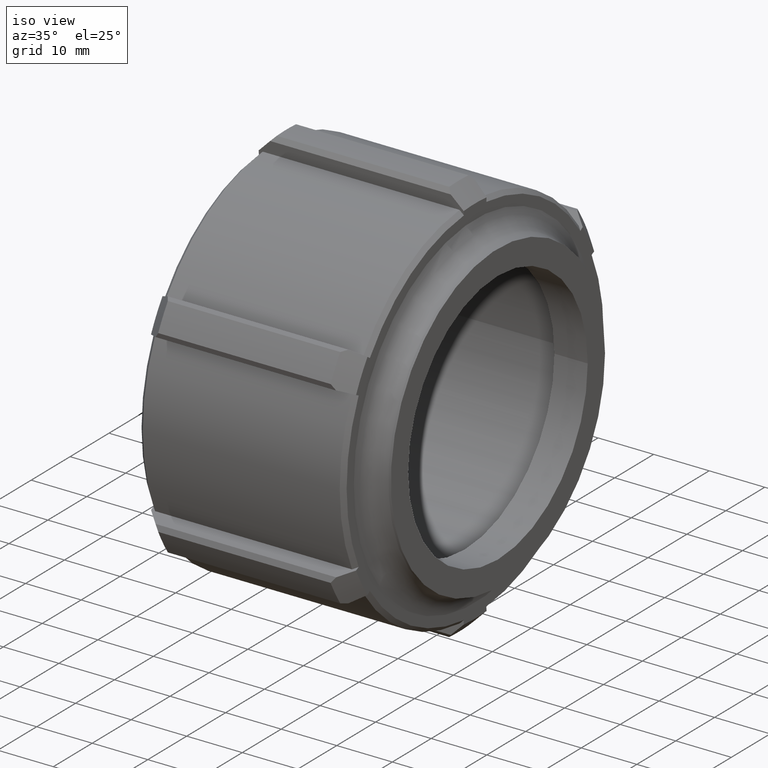
[diagram: clean part render]
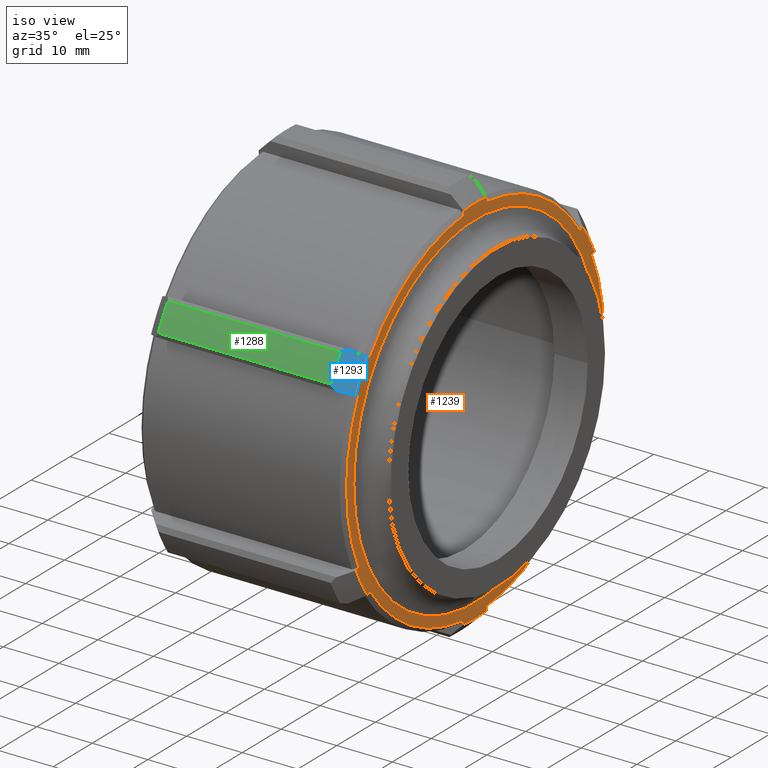
[diagram: same view with three faces highlighted in distinct colors, each labeled with its STEP entity id]
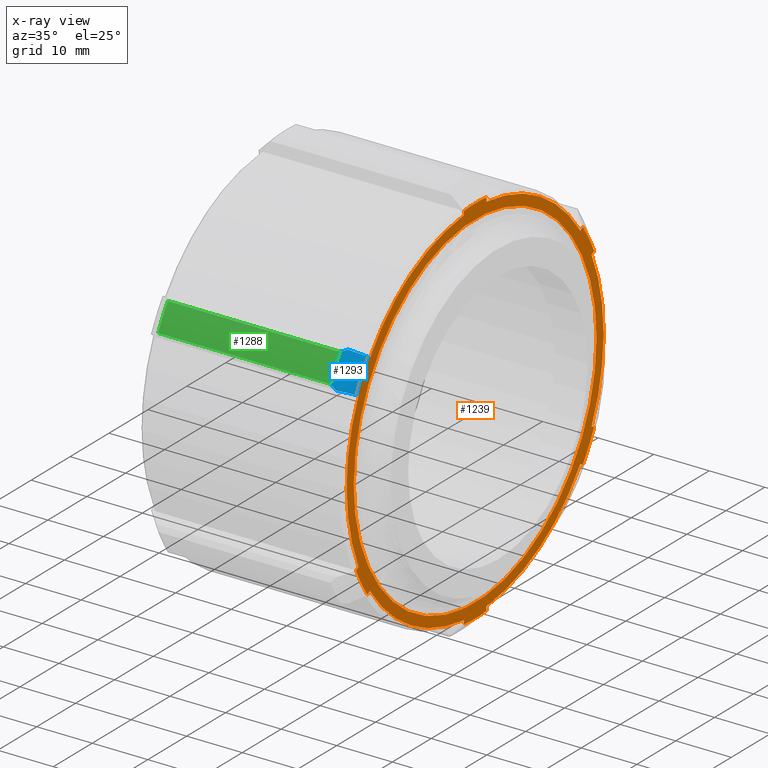
[diagram: x-ray of the same camera — body ghosted, the three highlighted faces saturated]
A machine part, iso view with three faces highlighted in distinct colors.
The next image is the same camera in x-ray (body ghosted, the three faces saturated) — at least one of them is partly hidden behind the body in this view.
Their STEP definitions:

[orange] entity #1239 — the highlighted planar face has unit normal (1, 0, 0).
#79=LINE('',#1810,#187);
#80=LINE('',#1814,#188);
#81=LINE('',#1818,#189);
#82=LINE('',#1822,#190);
#83=LINE('',#1826,#191);
#84=LINE('',#1830,#192);
#85=LINE('',#1834,#193);
#86=LINE('',#1838,#194);
#87=LINE('',#1842,#195);
#88=LINE('',#1846,#196);
#89=LINE('',#1850,#197);
#90=LINE('',#1854,#198);
#187=VECTOR('',#1447,0.734000000000001);
#188=VECTOR('',#1450,0.734000000000004);
#189=VECTOR('',#1453,0.734000000000004);
#190=VECTOR('',#1456,0.733999999999999);
#191=VECTOR('',#1459,0.733999999999995);
#192=VECTOR('',#1462,0.733999999999986);
#193=VECTOR('',#1465,0.733999999999999);
#194=VECTOR('',#1468,0.734000000000004);
#195=VECTOR('',#1471,0.733999999999999);
#196=VECTOR('',#1474,0.733999999999999);
#197=VECTOR('',#1477,0.734);
#198=VECTOR('',#1480,0.733999999999999);
#295=PLANE('',#1313);
#325=FACE_BOUND('',#407,.T.);
#335=FACE_OUTER_BOUND('',#406,.T.);
#406=EDGE_LOOP('',(#861,#862,#863,#864,#865,#866,#867,#868,#869,#870,#871,
#872,#873,#874,#875,#876,#877,#878,#879,#880,#881,#882,#883,#884));
#407=EDGE_LOOP('',(#885));
#484=CIRCLE('',#1311,31.195);
#486=CIRCLE('',#1314,33.03);
#487=CIRCLE('',#1315,33.764);
#488=CIRCLE('',#1316,33.03);
#489=CIRCLE('',#1317,33.764);
#490=CIRCLE('',#1318,33.03);
#491=CIRCLE('',#1319,33.764);
#492=CIRCLE('',#1320,33.03);
#493=CIRCLE('',#1321,33.764);
#494=CIRCLE('',#1322,33.03);
#495=CIRCLE('',#1323,33.764);
#496=CIRCLE('',#1324,33.03);
#497=CIRCLE('',#1325,33.764);
#541=VERTEX_POINT('',#1803);
#543=VERTEX_POINT('',#1808);
#544=VERTEX_POINT('',#1809);
#545=VERTEX_POINT('',#1811);
#546=VERTEX_POINT('',#1813);
#547=VERTEX_POINT('',#1815);
#548=VERTEX_POINT('',#1817);
#549=VERTEX_POINT('',#1819);
#550=VERTEX_POINT('',#1821);
#551=VERTEX_POINT('',#1823);
#552=VERTEX_POINT('',#1825);
#553=VERTEX_POINT('',#1827);
#554=VERTEX_POINT('',#1829);
#555=VERTEX_POINT('',#1831);
#556=VERTEX_POINT('',#1833);
#557=VERTEX_POINT('',#1835);
#558=VERTEX_POINT('',#1837);
#559=VERTEX_POINT('',#1839);
#560=VERTEX_POINT('',#1841);
#561=VERTEX_POINT('',#1843);
#562=VERTEX_POINT('',#1845);
#563=VERTEX_POINT('',#1847);
#564=VERTEX_POINT('',#1849);
#565=VERTEX_POINT('',#1851);
#566=VERTEX_POINT('',#1853);
#670=EDGE_CURVE('',#541,#541,#484,.T.);
#672=EDGE_CURVE('',#543,#544,#79,.T.);
#673=EDGE_CURVE('',#545,#543,#486,.T.);
#674=EDGE_CURVE('',#546,#545,#80,.T.);
#675=EDGE_CURVE('',#547,#546,#487,.T.);
#676=EDGE_CURVE('',#548,#547,#81,.T.);
#677=EDGE_CURVE('',#549,#548,#488,.T.);
#678=EDGE_CURVE('',#550,#549,#82,.T.);
#679=EDGE_CURVE('',#551,#550,#489,.T.);
#680=EDGE_CURVE('',#552,#551,#83,.T.);
#681=EDGE_CURVE('',#553,#552,#490,.T.);
#682=EDGE_CURVE('',#554,#553,#84,.T.);
#683=EDGE_CURVE('',#555,#554,#491,.T.);
#684=EDGE_CURVE('',#556,#555,#85,.T.);
#685=EDGE_CURVE('',#557,#556,#492,.T.);
#686=EDGE_CURVE('',#558,#557,#86,.T.);
#687=EDGE_CURVE('',#559,#558,#493,.T.);
#688=EDGE_CURVE('',#560,#559,#87,.T.);
#689=EDGE_CURVE('',#561,#560,#494,.T.);
#690=EDGE_CURVE('',#562,#561,#88,.T.);
#691=EDGE_CURVE('',#563,#562,#495,.T.);
#692=EDGE_CURVE('',#564,#563,#89,.T.);
#693=EDGE_CURVE('',#565,#564,#496,.T.);
#694=EDGE_CURVE('',#566,#565,#90,.T.);
#695=EDGE_CURVE('',#544,#566,#497,.T.);
#861=ORIENTED_EDGE('',*,*,#672,.F.);
#862=ORIENTED_EDGE('',*,*,#673,.F.);
#863=ORIENTED_EDGE('',*,*,#674,.F.);
#864=ORIENTED_EDGE('',*,*,#675,.F.);
#865=ORIENTED_EDGE('',*,*,#676,.F.);
#866=ORIENTED_EDGE('',*,*,#677,.F.);
#867=ORIENTED_EDGE('',*,*,#678,.F.);
#868=ORIENTED_EDGE('',*,*,#679,.F.);
#869=ORIENTED_EDGE('',*,*,#680,.F.);
#870=ORIENTED_EDGE('',*,*,#681,.F.);
#871=ORIENTED_EDGE('',*,*,#682,.F.);
#872=ORIENTED_EDGE('',*,*,#683,.F.);
#873=ORIENTED_EDGE('',*,*,#684,.F.);
#874=ORIENTED_EDGE('',*,*,#685,.F.);
#875=ORIENTED_EDGE('',*,*,#686,.F.);
#876=ORIENTED_EDGE('',*,*,#687,.F.);
#877=ORIENTED_EDGE('',*,*,#688,.F.);
#878=ORIENTED_EDGE('',*,*,#689,.F.);
#879=ORIENTED_EDGE('',*,*,#690,.F.);
#880=ORIENTED_EDGE('',*,*,#691,.F.);
#881=ORIENTED_EDGE('',*,*,#692,.F.);
#882=ORIENTED_EDGE('',*,*,#693,.F.);
#883=ORIENTED_EDGE('',*,*,#694,.F.);
#884=ORIENTED_EDGE('',*,*,#695,.F.);
#885=ORIENTED_EDGE('',*,*,#670,.F.);
#1239=ADVANCED_FACE('',(#335,#325),#295,.T.);
#1311=AXIS2_PLACEMENT_3D('',#1804,#1441,#1442);
#1313=AXIS2_PLACEMENT_3D('',#1807,#1445,#1446);
#1314=AXIS2_PLACEMENT_3D('',#1812,#1448,#1449);
#1315=AXIS2_PLACEMENT_3D('',#1816,#1451,#1452);
#1316=AXIS2_PLACEMENT_3D('',#1820,#1454,#1455);
#1317=AXIS2_PLACEMENT_3D('',#1824,#1457,#1458);
#1318=AXIS2_PLACEMENT_3D('',#1828,#1460,#1461);
#1319=AXIS2_PLACEMENT_3D('',#1832,#1463,#1464);
#1320=AXIS2_PLACEMENT_3D('',#1836,#1466,#1467);
#1321=AXIS2_PLACEMENT_3D('',#1840,#1469,#1470);
#1322=AXIS2_PLACEMENT_3D('',#1844,#1472,#1473);
#1323=AXIS2_PLACEMENT_3D('',#1848,#1475,#1476);
#1324=AXIS2_PLACEMENT_3D('',#1852,#1478,#1479);
#1325=AXIS2_PLACEMENT_3D('',#1855,#1481,#1482);
#1441=DIRECTION('center_axis',(1.,0.,0.));
#1442=DIRECTION('ref_axis',(0.,-1.,1.83697019872103E-16));
#1445=DIRECTION('center_axis',(1.,0.,0.));
#1446=DIRECTION('ref_axis',(0.,0.,-1.));
#1447=DIRECTION('',(0.,-0.0871557427476573,0.996194698091746));
#1448=DIRECTION('center_axis',(-1.,0.,0.));
#1449=DIRECTION('ref_axis',(0.,0.866025403784439,0.5));
#1450=DIRECTION('',(0.,0.819152044288991,-0.573576436351047));
#1451=DIRECTION('center_axis',(-1.,0.,0.));
#1452=DIRECTION('ref_axis',(0.,-1.,0.));
#1453=DIRECTION('',(0.,-0.90630778703665,0.4226182617407));
#1454=DIRECTION('center_axis',(-1.,0.,0.));
#1455=DIRECTION('ref_axis',(0.,1.31527428577794E-16,1.));
#1456=DIRECTION('',(0.,0.90630778703665,0.422618261740699));
#1457=DIRECTION('center_axis',(-1.,0.,0.));
#1458=DIRECTION('ref_axis',(0.,-1.,0.));
#1459=DIRECTION('',(0.,-0.819152044288992,-0.573576436351045));
#1460=DIRECTION('center_axis',(-1.,0.,0.));
#1461=DIRECTION('ref_axis',(0.,-0.866025403784438,0.5));
#1462=DIRECTION('',(0.,0.0871557427476593,0.996194698091745));
#1463=DIRECTION('center_axis',(-1.,0.,0.));
#1464=DIRECTION('ref_axis',(0.,-1.,0.));
#1465=DIRECTION('',(0.,0.0871557427476567,-0.996194698091746));
#1466=DIRECTION('center_axis',(-1.,0.,0.));
#1467=DIRECTION('ref_axis',(0.,-0.866025403784439,-0.499999999999999));
#1468=DIRECTION('',(0.,-0.819152044288991,0.573576436351047));
#1469=DIRECTION('center_axis',(-1.,0.,0.));
#1470=DIRECTION('ref_axis',(0.,-1.,0.));
#1471=DIRECTION('',(0.,0.90630778703665,-0.4226182617407));
#1472=DIRECTION('center_axis',(-1.,0.,0.));
#1473=DIRECTION('ref_axis',(0.,0.,-1.));
#1474=DIRECTION('',(0.,-0.90630778703665,-0.422618261740699));
#1475=DIRECTION('center_axis',(-1.,0.,0.));
#1476=DIRECTION('ref_axis',(0.,-1.,0.));
#1477=DIRECTION('',(0.,0.819152044288992,0.573576436351045));
#1478=DIRECTION('center_axis',(-1.,0.,0.));
#1479=DIRECTION('ref_axis',(0.,0.866025403784438,-0.5));
#1480=DIRECTION('',(0.,-0.0871557427476589,-0.996194698091745));
#1481=DIRECTION('center_axis',(-1.,0.,0.));
#1482=DIRECTION('ref_axis',(0.,-1.,0.));
#1803=CARTESIAN_POINT('',(36.9,31.195,-1.91014284497008E-15));
#1804=CARTESIAN_POINT('Origin',(36.9,0.,0.));
#1807=CARTESIAN_POINT('Origin',(36.9,27.525,0.));
#1808=CARTESIAN_POINT('',(36.9,-2.87875418295512,32.9043108779704));
#1809=CARTESIAN_POINT('',(36.9,-2.9427264981319,33.6355177863697));
#1810=CARTESIAN_POINT('',(36.9,-1.36682159948122,15.6228423706143));
#1811=CARTESIAN_POINT('',(36.9,-27.0565920228654,18.9452296926751));
#1812=CARTESIAN_POINT('Origin',(36.9,0.,0.));
#1813=CARTESIAN_POINT('',(36.9,-27.6578496233735,19.3662347969568));
#1814=CARTESIAN_POINT('',(36.9,-5.79666390144324,4.05886776025868));
#1815=CARTESIAN_POINT('',(36.9,-30.6005761215054,14.269282989413));
#1816=CARTESIAN_POINT('Origin',(36.9,0.,0.));
#1817=CARTESIAN_POINT('',(36.9,-29.9353462058205,13.9590811852953));
#1818=CARTESIAN_POINT('',(36.9,-3.99585582159723,1.86329817049402));
#1819=CARTESIAN_POINT('',(36.9,-29.9353462058206,-13.9590811852953));
#1820=CARTESIAN_POINT('Origin',(36.9,0.,0.));
#1821=CARTESIAN_POINT('',(36.9,-30.6005761215055,-14.269282989413));
#1822=CARTESIAN_POINT('',(36.9,-5.32631565296703,-2.48370177872936));
#1823=CARTESIAN_POINT('',(36.9,-27.6578496233735,-19.3662347969567));
#1824=CARTESIAN_POINT('Origin',(36.9,0.,0.));
#1825=CARTESIAN_POINT('',(36.9,-27.0565920228654,-18.945229692675));
#1826=CARTESIAN_POINT('',(36.9,-4.594148700427,-3.21685755169532));
#1827=CARTESIAN_POINT('',(36.9,-2.87875418295519,-32.9043108779704));
#1828=CARTESIAN_POINT('Origin',(36.9,0.,0.));
#1829=CARTESIAN_POINT('',(36.9,-2.94272649813197,-33.6355177863697));
#1830=CARTESIAN_POINT('',(36.9,-1.4947662298348,-17.085256187413));
#1831=CARTESIAN_POINT('',(36.9,2.94272649813188,-33.6355177863697));
#1832=CARTESIAN_POINT('Origin',(36.9,0.,0.));
#1833=CARTESIAN_POINT('',(36.9,2.8787541829551,-32.9043108779704));
#1834=CARTESIAN_POINT('',(36.9,1.57590489865068,-18.0126754157554));
#1835=CARTESIAN_POINT('',(36.9,27.0565920228654,-18.9452296926751));
#1836=CARTESIAN_POINT('Origin',(36.9,0.,0.));
#1837=CARTESIAN_POINT('',(36.9,27.6578496233735,-19.3662347969568));
#1838=CARTESIAN_POINT('',(36.9,24.2662161239627,-16.9913874538248));
#1839=CARTESIAN_POINT('',(36.9,30.6005761215054,-14.269282989413));
#1840=CARTESIAN_POINT('Origin',(36.9,0.,0.));
#1841=CARTESIAN_POINT('',(36.9,29.9353462058205,-13.9590811852953));
#1842=CARTESIAN_POINT('',(36.9,26.6047202999082,-12.405984818919));
#1843=CARTESIAN_POINT('',(36.9,29.9353462058206,13.9590811852953));
#1844=CARTESIAN_POINT('Origin',(36.9,0.,0.));
#1845=CARTESIAN_POINT('',(36.9,30.6005761215055,14.269282989413));
#1846=CARTESIAN_POINT('',(36.9,27.935180131278,13.0263884271543));
#1847=CARTESIAN_POINT('',(36.9,27.6578496233735,19.3662347969567));
#1848=CARTESIAN_POINT('Origin',(36.9,0.,0.));
#1849=CARTESIAN_POINT('',(36.9,27.0565920228654,18.945229692675));
#1850=CARTESIAN_POINT('',(36.9,23.0637009229465,16.1493772452614));
#1851=CARTESIAN_POINT('',(36.9,2.87875418295518,32.9043108779704));
#1852=CARTESIAN_POINT('Origin',(36.9,0.,0.));
#1853=CARTESIAN_POINT('',(36.9,2.94272649813196,33.6355177863697));
#1854=CARTESIAN_POINT('',(36.9,1.70384952900429,19.4750892325541));
#1855=CARTESIAN_POINT('Origin',(36.9,0.,0.));

[blue] entity #1293 — the highlighted conical surface has half-angle 45 deg.
#26=(
BOUNDED_CURVE()
B_SPLINE_CURVE(2,(#2082,#2083,#2084),.UNSPECIFIED.,.F.,.F.)
B_SPLINE_CURVE_WITH_KNOTS((3,3),(0.397256243738584,0.51859544338436),
 .UNSPECIFIED.)
CURVE()
GEOMETRIC_REPRESENTATION_ITEM()
RATIONAL_B_SPLINE_CURVE((1.00066136138259,1.00043168484429,1.))
REPRESENTATION_ITEM('')
);
#29=(
BOUNDED_CURVE()
B_SPLINE_CURVE(2,(#2108,#2109,#2110),.UNSPECIFIED.,.F.,.F.)
B_SPLINE_CURVE_WITH_KNOTS((3,3),(0.,0.121339199645751),.UNSPECIFIED.)
CURVE()
GEOMETRIC_REPRESENTATION_ITEM()
RATIONAL_B_SPLINE_CURVE((1.,1.00043168484427,1.00066136138256))
REPRESENTATION_ITEM('')
);
#59=CONICAL_SURFACE('',#1417,35.232,45.);
#157=LINE('',#2095,#265);
#161=LINE('',#2113,#269);
#265=VECTOR('',#1665,3.11409826434557);
#269=VECTOR('',#1677,3.11409826434556);
#389=FACE_OUTER_BOUND('',#463,.T.);
#463=EDGE_LOOP('',(#1173,#1174,#1175,#1176,#1177,#1178));
#487=CIRCLE('',#1315,33.764);
#532=CIRCLE('',#1409,36.7);
#546=VERTEX_POINT('',#1813);
#547=VERTEX_POINT('',#1815);
#639=VERTEX_POINT('',#2080);
#640=VERTEX_POINT('',#2081);
#645=VERTEX_POINT('',#2105);
#646=VERTEX_POINT('',#2107);
#675=EDGE_CURVE('',#547,#546,#487,.T.);
#798=EDGE_CURVE('',#639,#640,#26,.T.);
#804=EDGE_CURVE('',#639,#547,#157,.T.);
#809=EDGE_CURVE('',#645,#646,#29,.T.);
#811=EDGE_CURVE('',#546,#646,#161,.T.);
#843=EDGE_CURVE('',#645,#640,#532,.T.);
#1173=ORIENTED_EDGE('',*,*,#798,.F.);
#1174=ORIENTED_EDGE('',*,*,#804,.T.);
#1175=ORIENTED_EDGE('',*,*,#675,.T.);
#1176=ORIENTED_EDGE('',*,*,#811,.T.);
#1177=ORIENTED_EDGE('',*,*,#809,.F.);
#1178=ORIENTED_EDGE('',*,*,#843,.T.);
#1293=ADVANCED_FACE('',(#389),#59,.T.);
#1315=AXIS2_PLACEMENT_3D('',#1816,#1451,#1452);
#1409=AXIS2_PLACEMENT_3D('',#2194,#1739,#1740);
#1417=AXIS2_PLACEMENT_3D('',#2204,#1756,#1757);
#1451=DIRECTION('center_axis',(-1.,0.,0.));
#1452=DIRECTION('ref_axis',(0.,-1.,0.));
#1665=DIRECTION('',(0.707106781186547,0.640856382055788,-0.298836238730121));
#1677=DIRECTION('',(-0.707106781186547,-0.579227965339569,0.405579787672639));
#1739=DIRECTION('center_axis',(1.,0.,0.));
#1740=DIRECTION('ref_axis',(0.,-1.,0.));
#1756=DIRECTION('center_axis',(-1.,0.,0.));
#1757=DIRECTION('ref_axis',(0.,-1.,0.));
#1813=CARTESIAN_POINT('',(36.9,-27.6578496233735,19.3662347969568));
#1815=CARTESIAN_POINT('',(36.9,-30.6005761215054,14.269282989413));
#1816=CARTESIAN_POINT('Origin',(36.9,0.,0.));
#2080=CARTESIAN_POINT('',(34.698,-32.5962658685602,15.199888401766));
#2081=CARTESIAN_POINT('',(33.964,-32.9446571914485,16.1721848412001));
#2082=CARTESIAN_POINT('Ctrl Pts',(34.698,-32.5962658685602,15.199888401766));
#2083=CARTESIAN_POINT('Ctrl Pts',(34.33834,-32.7687019778685,15.6811260334051));
#2084=CARTESIAN_POINT('Ctrl Pts',(33.964,-32.9446571914485,16.1721848412001));
#2095=CARTESIAN_POINT('',(35.432,-31.9310359528752,14.8896865976484));
#2105=CARTESIAN_POINT('',(33.964,-30.4778515029011,20.4448176261641));
#2107=CARTESIAN_POINT('',(34.698,-29.4616224248979,20.6292501098018));
#2108=CARTESIAN_POINT('Ctrl Pts',(33.964,-30.4778515029011,20.4448176261641));
#2109=CARTESIAN_POINT('Ctrl Pts',(34.33834,-29.9646044938085,20.537965345173));
#2110=CARTESIAN_POINT('Ctrl Pts',(34.698,-29.4616224248979,20.6292501098018));
#2113=CARTESIAN_POINT('',(35.432,-28.8603648243897,20.2082450055201));
#2194=CARTESIAN_POINT('Origin',(33.964,0.,0.));
#2204=CARTESIAN_POINT('Origin',(35.432,0.,0.));

[green] entity #1288 — the highlighted cylindrical surface (partial cylindrical patch) has radius 36.7 mm, axis along (1, 0, 0).
#71=CYLINDRICAL_SURFACE('',#1408,36.7);
#153=LINE('',#2086,#261);
#159=LINE('',#2106,#267);
#261=VECTOR('',#1659,31.028);
#267=VECTOR('',#1673,31.028);
#384=FACE_OUTER_BOUND('',#458,.T.);
#458=EDGE_LOOP('',(#1151,#1152,#1153,#1154));
#527=CIRCLE('',#1385,36.7);
#532=CIRCLE('',#1409,36.7);
#640=VERTEX_POINT('',#2081);
#641=VERTEX_POINT('',#2085);
#643=VERTEX_POINT('',#2097);
#645=VERTEX_POINT('',#2105);
#799=EDGE_CURVE('',#640,#641,#153,.T.);
#805=EDGE_CURVE('',#641,#643,#527,.T.);
#808=EDGE_CURVE('',#643,#645,#159,.T.);
#843=EDGE_CURVE('',#645,#640,#532,.T.);
#1151=ORIENTED_EDGE('',*,*,#799,.F.);
#1152=ORIENTED_EDGE('',*,*,#843,.F.);
#1153=ORIENTED_EDGE('',*,*,#808,.F.);
#1154=ORIENTED_EDGE('',*,*,#805,.F.);
#1288=ADVANCED_FACE('',(#384),#71,.T.);
#1385=AXIS2_PLACEMENT_3D('',#2098,#1668,#1669);
#1408=AXIS2_PLACEMENT_3D('',#2193,#1737,#1738);
#1409=AXIS2_PLACEMENT_3D('',#2194,#1739,#1740);
#1659=DIRECTION('',(-1.,0.,0.));
#1668=DIRECTION('center_axis',(-1.,0.,0.));
#1669=DIRECTION('ref_axis',(0.,-1.,0.));
#1673=DIRECTION('',(1.,0.,0.));
#1737=DIRECTION('center_axis',(1.,0.,0.));
#1738=DIRECTION('ref_axis',(0.,1.,0.));
#1739=DIRECTION('center_axis',(1.,0.,0.));
#1740=DIRECTION('ref_axis',(0.,-1.,0.));
#2081=CARTESIAN_POINT('',(33.964,-32.9446571914485,16.1721848412001));
#2085=CARTESIAN_POINT('',(2.936,-32.9446571914485,16.1721848412001));
#2086=CARTESIAN_POINT('',(18.45,-32.9446571914485,16.1721848412001));
#2097=CARTESIAN_POINT('',(2.936,-30.4778515029011,20.4448176261641));
#2098=CARTESIAN_POINT('Origin',(2.936,0.,0.));
#2105=CARTESIAN_POINT('',(33.964,-30.4778515029011,20.4448176261641));
#2106=CARTESIAN_POINT('',(18.45,-30.4778515029011,20.4448176261641));
#2193=CARTESIAN_POINT('Origin',(18.45,0.,0.));
#2194=CARTESIAN_POINT('Origin',(33.964,0.,0.));